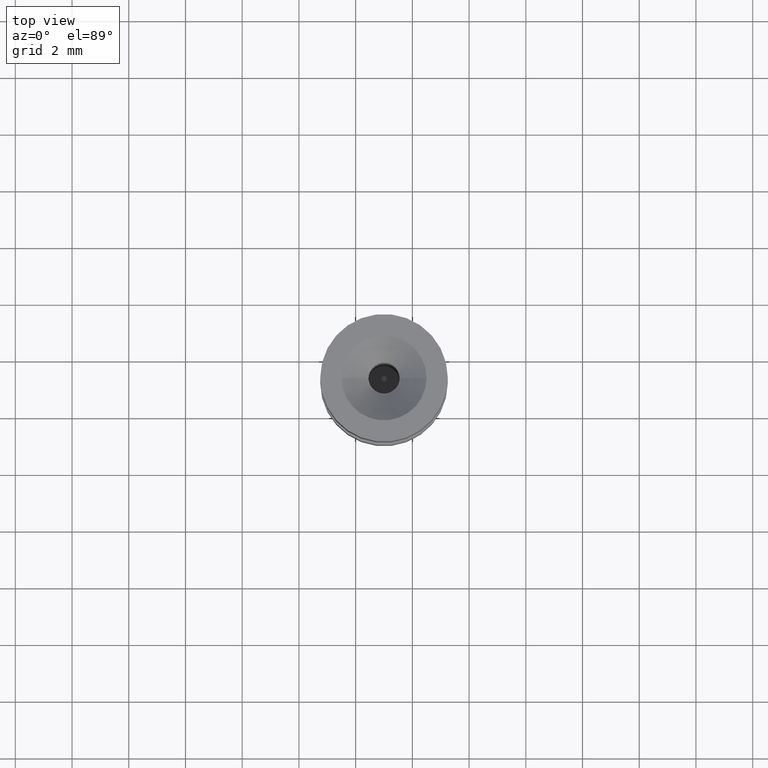
[diagram: clean part render]
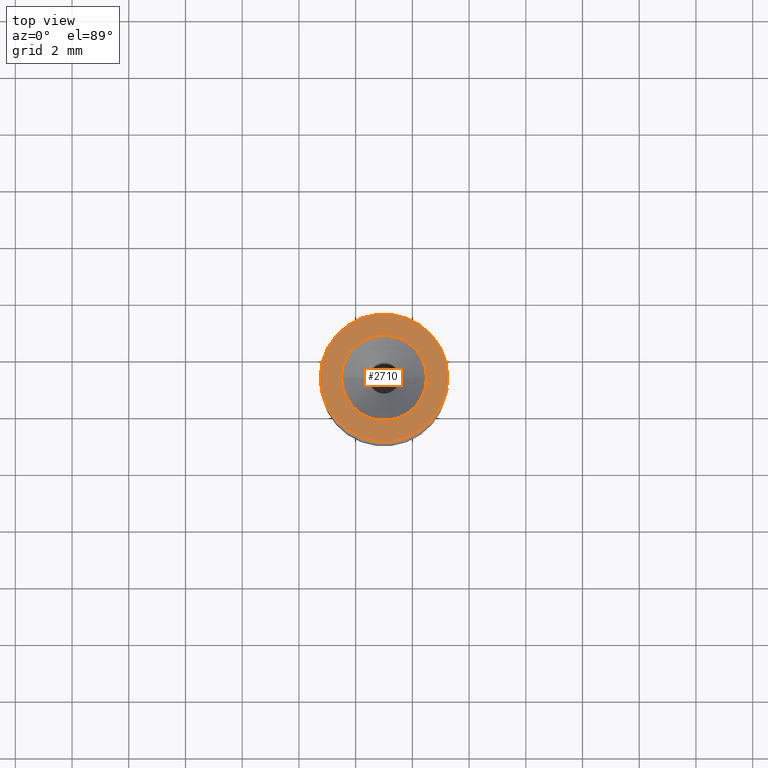
[diagram: same view with one face highlighted and labeled with its STEP entity id]
A machine part, top view. The second image highlights one B-rep face of the part: STEP entity #2710.
In plain terms, the highlighted planar face has unit normal (-0, -0, 1).
Its self-contained STEP definition (entity closure, byte-faithful):
#2360=CARTESIAN_POINT('',(31.6858875,64.657183,-6.6));
#2370=DIRECTION('',(-0.,-1.,-1.83697019872103E-16));
#2380=DIRECTION('',(-1.,0.,0.));
#2390=AXIS2_PLACEMENT_3D('',#2360,#2370,#2380);
#2400=PLANE('',#2390);
#2410=CARTESIAN_POINT('',(33.587952,64.657183,-6.59999999999999));
#2420=DIRECTION('',(0.,-1.,0.));
#2430=DIRECTION('',(1.,0.,0.));
#2440=AXIS2_PLACEMENT_3D('',#2410,#2420,#2430);
#2450=CIRCLE('',#2440,1.5);
#2460=CARTESIAN_POINT('',(35.087952,64.657183,-6.59999999999999));
#2470=VERTEX_POINT('',#2460);
#2480=CARTESIAN_POINT('',(32.087952,64.657183,-6.59999999999999));
#2490=VERTEX_POINT('',#2480);
#2500=EDGE_CURVE('',#2470,#2490,#2450,.T.);
#2510=ORIENTED_EDGE('',*,*,#2500,.F.);
#2520=EDGE_CURVE('',#2490,#2470,#2450,.T.);
#2530=ORIENTED_EDGE('',*,*,#2520,.F.);
#2540=EDGE_LOOP('',(#2530,#2510));
#2550=FACE_BOUND('',#2540,.T.);
#2560=CARTESIAN_POINT('',(33.587952,64.657183,-6.59999999999999));
#2570=DIRECTION('',(0.,1.,0.));
#2580=DIRECTION('',(1.,0.,0.));
#2590=AXIS2_PLACEMENT_3D('',#2560,#2570,#2580);
#2600=CIRCLE('',#2590,2.25);
#2610=CARTESIAN_POINT('',(35.837952,64.657183,-6.59999999999999));
#2620=VERTEX_POINT('',#2610);
#2630=CARTESIAN_POINT('',(31.337952,64.657183,-6.59999999999999));
#2640=VERTEX_POINT('',#2630);
#2650=EDGE_CURVE('',#2620,#2640,#2600,.T.);
#2660=ORIENTED_EDGE('',*,*,#2650,.F.);
#2670=EDGE_CURVE('',#2640,#2620,#2600,.T.);
#2680=ORIENTED_EDGE('',*,*,#2670,.F.);
#2690=EDGE_LOOP('',(#2680,#2660));
#2700=FACE_OUTER_BOUND('',#2690,.T.);
#2710=ADVANCED_FACE('',(#2550,#2700),#2400,.T.);